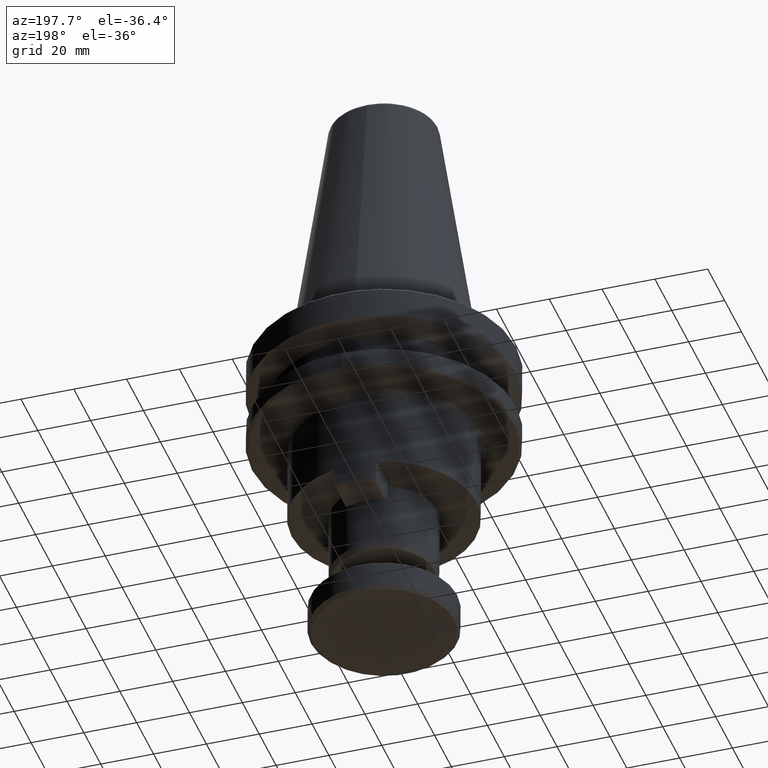
[diagram: clean part render]
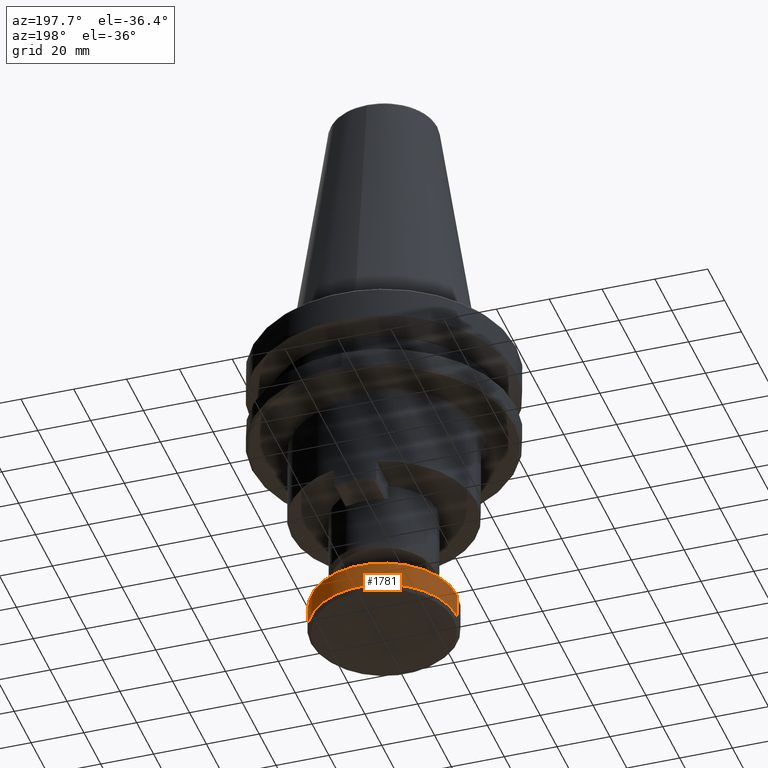
[diagram: same view with one face highlighted and labeled with its STEP entity id]
A machine part, auxiliary view. The second image highlights one B-rep face of the part: STEP entity #1781.
In plain terms, the highlighted cylindrical surface (partial cylindrical patch) has radius 27.6522 mm, axis along (-0, -0, -1).
Its self-contained STEP definition (entity closure, byte-faithful):
#6 = CARTESIAN_POINT ( 'NONE',  ( -27.65222075825927900, 3.386420364091822200E-015, -119.6480174224080000 ) ) ;
#138 = EDGE_CURVE ( 'NONE', #528, #1422, #1904, .T. ) ;
#292 = CARTESIAN_POINT ( 'NONE',  ( 0.0000000000000000000, 0.0000000000000000000, -161.3662820910122100 ) ) ;
#528 = VERTEX_POINT ( 'NONE', #2790 ) ;
#666 = DIRECTION ( 'NONE',  ( -0.0000000000000000000, -0.0000000000000000000, -1.000000000000000000 ) ) ;
#778 = CIRCLE ( 'NONE', #2547, 27.65222075825927900 ) ;
#858 = CARTESIAN_POINT ( 'NONE',  ( 0.0000000000000000000, 0.0000000000000000000, -110.1480174224079000 ) ) ;
#892 = CARTESIAN_POINT ( 'NONE',  ( 27.65222075825927900, 0.0000000000000000000, -119.6480174224080000 ) ) ;
#900 = CARTESIAN_POINT ( 'NONE',  ( 27.65222075825933600, 3.386420364091829300E-015, -161.3662820910122100 ) ) ;
#1087 = EDGE_CURVE ( 'NONE', #3027, #1742, #2797, .T. ) ;
#1198 = ORIENTED_EDGE ( 'NONE', *, *, #138, .T. ) ;
#1207 = CYLINDRICAL_SURFACE ( 'NONE', #2134, 27.65222075825933600 ) ;
#1219 = CARTESIAN_POINT ( 'NONE',  ( 0.0000000000000000000, 0.0000000000000000000, -119.6480174224080000 ) ) ;
#1313 = ORIENTED_EDGE ( 'NONE', *, *, #3167, .F. ) ;
#1422 = VERTEX_POINT ( 'NONE', #892 ) ;
#1437 = DIRECTION ( 'NONE',  ( -0.0000000000000000000, -0.0000000000000000000, -1.000000000000000000 ) ) ;
#1441 = CARTESIAN_POINT ( 'NONE',  ( -27.65222075825933600, 0.0000000000000000000, -161.3662820910122100 ) ) ;
#1484 = DIRECTION ( 'NONE',  ( -1.000000000000000000, 0.0000000000000000000, 0.0000000000000000000 ) ) ;
#1521 = ORIENTED_EDGE ( 'NONE', *, *, #1087, .F. ) ;
#1555 = DIRECTION ( 'NONE',  ( -0.0000000000000000000, -0.0000000000000000000, -1.000000000000000000 ) ) ;
#1618 = AXIS2_PLACEMENT_3D ( 'NONE', #858, #1555, #2006 ) ;
#1742 = VERTEX_POINT ( 'NONE', #6 ) ;
#1781 = ADVANCED_FACE ( 'NONE', ( #2751 ), #1207, .T. ) ;
#1880 = VECTOR ( 'NONE', #666, 1000.000000000000000 ) ;
#1884 = EDGE_CURVE ( 'NONE', #3027, #528, #2949, .T. ) ;
#1904 = LINE ( 'NONE', #900, #1880 ) ;
#1968 = DIRECTION ( 'NONE',  ( -1.000000000000000000, 0.0000000000000000000, 0.0000000000000000000 ) ) ;
#2006 = DIRECTION ( 'NONE',  ( -1.000000000000000000, 0.0000000000000000000, 0.0000000000000000000 ) ) ;
#2134 = AXIS2_PLACEMENT_3D ( 'NONE', #292, #2268, #1968 ) ;
#2268 = DIRECTION ( 'NONE',  ( -0.0000000000000000000, -0.0000000000000000000, -1.000000000000000000 ) ) ;
#2407 = CARTESIAN_POINT ( 'NONE',  ( -27.65222075825939300, 0.0000000000000000000, -110.1480174224079000 ) ) ;
#2547 = AXIS2_PLACEMENT_3D ( 'NONE', #1219, #3004, #1484 ) ;
#2658 = EDGE_LOOP ( 'NONE', ( #2817, #1198, #1313, #1521 ) ) ;
#2751 = FACE_OUTER_BOUND ( 'NONE', #2658, .T. ) ;
#2790 = CARTESIAN_POINT ( 'NONE',  ( 27.65222075825939600, 3.386420364091836700E-015, -110.1480174224079000 ) ) ;
#2797 = LINE ( 'NONE', #1441, #2827 ) ;
#2817 = ORIENTED_EDGE ( 'NONE', *, *, #1884, .T. ) ;
#2827 = VECTOR ( 'NONE', #1437, 1000.000000000000000 ) ;
#2949 = CIRCLE ( 'NONE', #1618, 27.65222075825939300 ) ;
#3004 = DIRECTION ( 'NONE',  ( -0.0000000000000000000, -0.0000000000000000000, -1.000000000000000000 ) ) ;
#3027 = VERTEX_POINT ( 'NONE', #2407 ) ;
#3167 = EDGE_CURVE ( 'NONE', #1742, #1422, #778, .T. ) ;